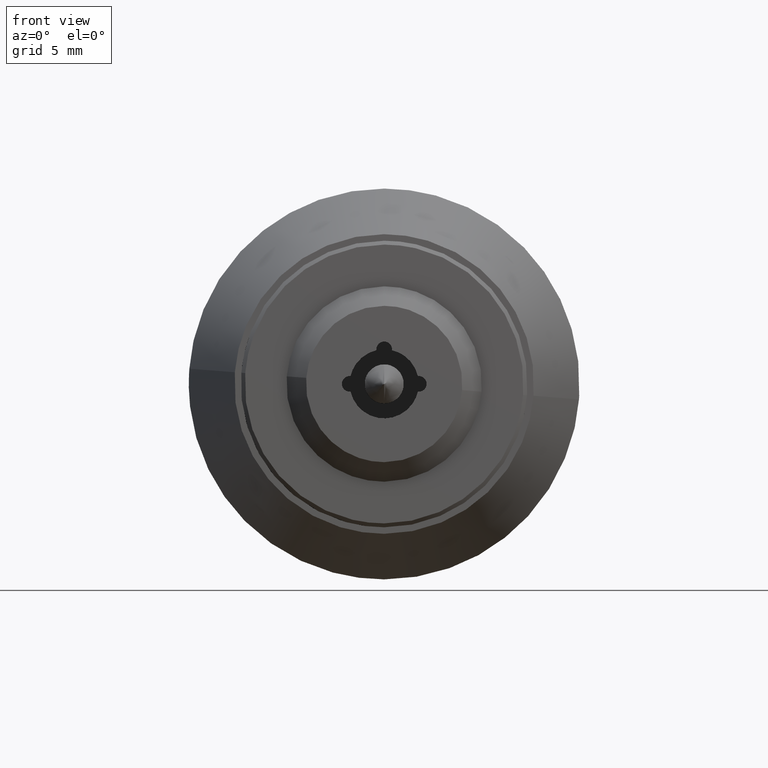
[diagram: clean part render]
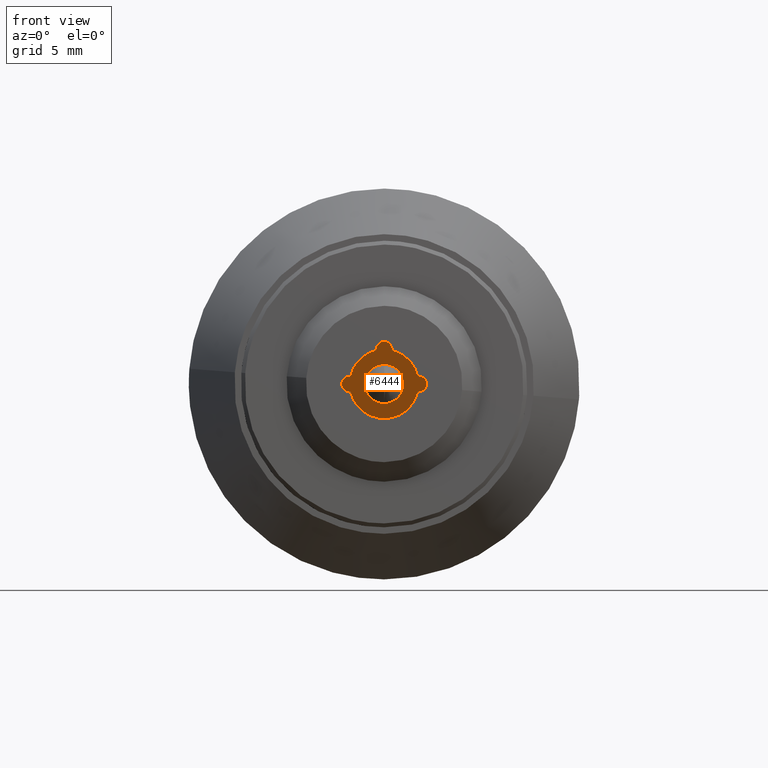
[diagram: same view with one face highlighted and labeled with its STEP entity id]
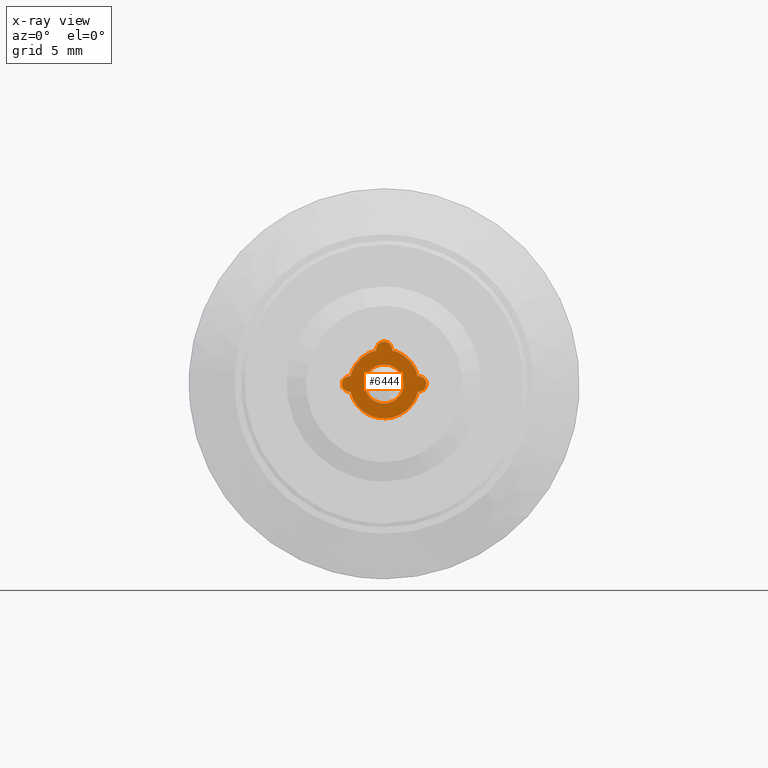
[diagram: x-ray of the same camera — body ghosted, the highlighted face saturated]
A machine part, front view. The second image highlights one B-rep face of the part: STEP entity #6444.
The next image is the same camera in x-ray: the body ghosted, the highlighted face saturated — about 0% of this face is hidden behind the body in this view.
In plain terms, the highlighted face is a freeform B-spline surface patch.
Its self-contained STEP definition (entity closure, byte-faithful):
#3203=CARTESIAN_POINT('',(8.800000000000001,1.489514289536289,0.177051352062623));
#3204=VERTEX_POINT('',#3203);
#3210=CARTESIAN_POINT('',(8.800000000000001,0.0,-1.500000000000000));
#3211=VERTEX_POINT('',#3210);
#3212=CARTESIAN_POINT('',(8.800000000000001,1.489514289536290,0.177051352062623));
#3213=CARTESIAN_POINT('',(8.799999999999999,1.500000000000000,0.088836179556170));
#3214=CARTESIAN_POINT('',(8.800000000000001,1.500000000000000,0.0));
#3215=CARTESIAN_POINT('',(8.800000000000001,1.500000000000000,-1.500000000000000));
#3216=CARTESIAN_POINT('',(8.800000000000001,0.0,-1.500000000000000));
#3224=(BOUNDED_CURVE()B_SPLINE_CURVE(2,(#3212,#3213,#3214,#3215,#3216),.UNSPECIFIED.,.F.,.U.)B_SPLINE_CURVE_WITH_KNOTS((3,2,3),(0.229562473498061,0.250000000000000,0.500000000000000),.UNSPECIFIED.)CURVE()GEOMETRIC_REPRESENTATION_ITEM()RATIONAL_B_SPLINE_CURVE((0.956026754153422,0.976055948313047,1.0,0.707106781186548,1.0))REPRESENTATION_ITEM(''));
#3225=EDGE_CURVE('',#3204,#3211,#3224,.T.);
#3227=CARTESIAN_POINT('',(8.800000000000001,-1.497202197626885,-0.091572809398997));
#3228=VERTEX_POINT('',#3227);
#3229=CARTESIAN_POINT('',(8.800000000000001,0.0,-1.500000000000000));
#3230=CARTESIAN_POINT('',(8.800000000000003,-1.411059100175899,-1.500000000000000));
#3231=CARTESIAN_POINT('',(8.800000000000001,-1.497202197626885,-0.091572809398997));
#3239=(BOUNDED_CURVE()B_SPLINE_CURVE(2,(#3229,#3230,#3231),.UNSPECIFIED.,.F.,.U.)B_SPLINE_CURVE_WITH_KNOTS((3,3),(0.500000000000000,0.739332962219676),.UNSPECIFIED.)CURVE()GEOMETRIC_REPRESENTATION_ITEM()RATIONAL_B_SPLINE_CURVE((1.0,0.719603993309283,0.976072041625425))REPRESENTATION_ITEM(''));
#3240=EDGE_CURVE('',#3211,#3228,#3239,.T.);
#3314=CARTESIAN_POINT('',(8.800000000000001,0.0,1.500000000000000));
#3315=VERTEX_POINT('',#3314);
#3316=CARTESIAN_POINT('',(8.800000000000001,-1.497202197626885,-0.091572809398997));
#3317=CARTESIAN_POINT('',(8.800000000000001,-1.500000000000000,-0.045829145044867));
#3318=CARTESIAN_POINT('',(8.800000000000001,-1.500000000000000,0.0));
#3319=CARTESIAN_POINT('',(8.800000000000001,-1.500000000000000,1.500000000000000));
#3320=CARTESIAN_POINT('',(8.800000000000001,0.0,1.500000000000000));
#3328=(BOUNDED_CURVE()B_SPLINE_CURVE(2,(#3316,#3317,#3318,#3319,#3320),.UNSPECIFIED.,.F.,.U.)B_SPLINE_CURVE_WITH_KNOTS((3,2,3),(0.739332962219677,0.750000000000000,1.0),.UNSPECIFIED.)CURVE()GEOMETRIC_REPRESENTATION_ITEM()RATIONAL_B_SPLINE_CURVE((0.976072041625427,0.987502787877266,1.0,0.707106781186548,1.0))REPRESENTATION_ITEM(''));
#3329=EDGE_CURVE('',#3228,#3315,#3328,.T.);
#3331=CARTESIAN_POINT('',(8.800000000000001,0.0,1.500000000000000));
#3332=CARTESIAN_POINT('',(8.800000000000003,1.332261788787466,1.500000000000000));
#3333=CARTESIAN_POINT('',(8.800000000000001,1.489514289536289,0.177051352062623));
#3341=(BOUNDED_CURVE()B_SPLINE_CURVE(2,(#3331,#3332,#3333),.UNSPECIFIED.,.F.,.U.)B_SPLINE_CURVE_WITH_KNOTS((3,3),(0.0,0.229562473498061),.UNSPECIFIED.)CURVE()GEOMETRIC_REPRESENTATION_ITEM()RATIONAL_B_SPLINE_CURVE((1.0,0.731050832873500,0.956026754153422))REPRESENTATION_ITEM(''));
#3342=EDGE_CURVE('',#3315,#3204,#3341,.T.);
#5693=CARTESIAN_POINT('',(8.800000000000001,-0.599999999999966,2.650000000000000));
#5694=VERTEX_POINT('',#5693);
#5700=CARTESIAN_POINT('',(8.800000000000001,-0.599999977908520,2.581181904963260));
#5701=VERTEX_POINT('',#5700);
#5702=CARTESIAN_POINT('',(8.800000000000001,-0.599999977908520,2.581181904963260));
#5703=CARTESIAN_POINT('',(8.800000000000001,-0.599999999999966,2.650000000000000));
#5704=QUASI_UNIFORM_CURVE('',1,(#5702,#5703),.UNSPECIFIED.,.F.,.U.);
#5705=EDGE_CURVE('',#5701,#5694,#5704,.T.);
#5745=CARTESIAN_POINT('',(8.800000000000001,-2.581181999999955,0.600000000000000));
#5746=VERTEX_POINT('',#5745);
#5747=CARTESIAN_POINT('',(8.800000000000001,-2.581181999999955,0.600000000000000));
#5748=CARTESIAN_POINT('',(8.800000000000001,-2.207512886267419,2.207512886267453));
#5749=CARTESIAN_POINT('',(8.800000000000001,-0.599999977908521,2.581181904963262));
#5757=(BOUNDED_CURVE()B_SPLINE_CURVE(2,(#5747,#5748,#5749),.UNSPECIFIED.,.F.,.U.)CURVE()GEOMETRIC_REPRESENTATION_ITEM()QUASI_UNIFORM_CURVE()RATIONAL_B_SPLINE_CURVE((1.0,0.848843502477901,1.0))REPRESENTATION_ITEM(''));
#5758=EDGE_CURVE('',#5746,#5701,#5757,.T.);
#5781=CARTESIAN_POINT('',(8.800000000000001,-2.649999999999915,0.600000000000000));
#5782=VERTEX_POINT('',#5781);
#5783=CARTESIAN_POINT('',(8.800000000000001,-2.649999999999915,0.600000000000000));
#5784=CARTESIAN_POINT('',(8.800000000000001,-2.581181999999955,0.600000000000000));
#5785=QUASI_UNIFORM_CURVE('',1,(#5783,#5784),.UNSPECIFIED.,.F.,.U.);
#5786=EDGE_CURVE('',#5782,#5746,#5785,.T.);
#5832=CARTESIAN_POINT('',(8.800000000000001,-2.649999999999915,-0.600000000000000));
#5833=VERTEX_POINT('',#5832);
#5834=CARTESIAN_POINT('',(8.800000000000001,-2.649999999999915,-0.600000000000000));
#5835=CARTESIAN_POINT('',(8.800000000000001,-3.249999999999915,-0.600000000000000));
#5836=CARTESIAN_POINT('',(8.800000000000001,-3.249999999999915,0.0));
#5837=CARTESIAN_POINT('',(8.800000000000001,-3.249999999999915,0.600000000000000));
#5838=CARTESIAN_POINT('',(8.800000000000001,-2.649999999999915,0.600000000000000));
#5846=(BOUNDED_CURVE()B_SPLINE_CURVE(2,(#5834,#5835,#5836,#5837,#5838),.UNSPECIFIED.,.F.,.U.)B_SPLINE_CURVE_WITH_KNOTS((3,2,3),(0.0,0.500000000000000,1.0),.UNSPECIFIED.)CURVE()GEOMETRIC_REPRESENTATION_ITEM()RATIONAL_B_SPLINE_CURVE((1.0,0.707106781186547,1.0,0.707106781186547,1.0))REPRESENTATION_ITEM(''));
#5847=EDGE_CURVE('',#5833,#5782,#5846,.T.);
#5870=CARTESIAN_POINT('',(8.800000000000001,-2.581181899828060,-0.600000000000000));
#5871=VERTEX_POINT('',#5870);
#5872=CARTESIAN_POINT('',(8.800000000000001,-2.581181899828060,-0.600000000000000));
#5873=CARTESIAN_POINT('',(8.800000000000001,-2.649999999999915,-0.600000000000000));
#5874=QUASI_UNIFORM_CURVE('',1,(#5872,#5873),.UNSPECIFIED.,.F.,.U.);
#5875=EDGE_CURVE('',#5871,#5833,#5874,.T.);
#5921=CARTESIAN_POINT('',(8.800000000000001,2.581182000000070,-0.600000000000000));
#5922=VERTEX_POINT('',#5921);
#5923=CARTESIAN_POINT('',(8.800000000000001,2.581182000000070,-0.600000000000000));
#5924=CARTESIAN_POINT('',(8.800000000000001,2.104656031215910,-2.649999990993480));
#5925=CARTESIAN_POINT('',(8.800000000000001,0.000000011340227,-2.650000000000000));
#5926=CARTESIAN_POINT('',(8.800000000000001,-2.104656008535454,-2.650000009006519));
#5927=CARTESIAN_POINT('',(8.800000000000001,-2.581181899828061,-0.600000000000001));
#5935=(BOUNDED_CURVE()B_SPLINE_CURVE(2,(#5923,#5924,#5925,#5926,#5927),.UNSPECIFIED.,.F.,.U.)B_SPLINE_CURVE_WITH_KNOTS((3,2,3),(0.0,0.500000000000000,1.0),.UNSPECIFIED.)CURVE()GEOMETRIC_REPRESENTATION_ITEM()RATIONAL_B_SPLINE_CURVE((1.0,0.783075695629555,1.0,0.783075695629555,1.0))REPRESENTATION_ITEM(''));
#5936=EDGE_CURVE('',#5922,#5871,#5935,.T.);
#5959=CARTESIAN_POINT('',(8.800000000000001,2.650000000000035,-0.600000000000000));
#5960=VERTEX_POINT('',#5959);
#5961=CARTESIAN_POINT('',(8.800000000000001,2.650000000000035,-0.600000000000000));
#5962=CARTESIAN_POINT('',(8.800000000000001,2.581182000000070,-0.600000000000000));
#5963=QUASI_UNIFORM_CURVE('',1,(#5961,#5962),.UNSPECIFIED.,.F.,.U.);
#5964=EDGE_CURVE('',#5960,#5922,#5963,.T.);
#6010=CARTESIAN_POINT('',(8.800000000000001,2.650000000000035,0.600000000000000));
#6011=VERTEX_POINT('',#6010);
#6012=CARTESIAN_POINT('',(8.800000000000001,2.650000000000035,0.600000000000000));
#6013=CARTESIAN_POINT('',(8.800000000000001,3.250000000000035,0.600000000000000));
#6014=CARTESIAN_POINT('',(8.800000000000001,3.250000000000035,0.0));
#6015=CARTESIAN_POINT('',(8.800000000000001,3.250000000000035,-0.600000000000000));
#6016=CARTESIAN_POINT('',(8.800000000000001,2.650000000000035,-0.600000000000000));
#6024=(BOUNDED_CURVE()B_SPLINE_CURVE(2,(#6012,#6013,#6014,#6015,#6016),.UNSPECIFIED.,.F.,.U.)B_SPLINE_CURVE_WITH_KNOTS((3,2,3),(0.0,0.500000000000000,1.0),.UNSPECIFIED.)CURVE()GEOMETRIC_REPRESENTATION_ITEM()RATIONAL_B_SPLINE_CURVE((1.0,0.707106781186547,1.0,0.707106781186547,1.0))REPRESENTATION_ITEM(''));
#6025=EDGE_CURVE('',#6011,#5960,#6024,.T.);
#6048=CARTESIAN_POINT('',(8.800000000000001,2.581181904963260,0.599999977908532));
#6049=VERTEX_POINT('',#6048);
#6050=CARTESIAN_POINT('',(8.800000000000001,2.581181904963260,0.599999977908532));
#6051=CARTESIAN_POINT('',(8.800000000000001,2.650000000000035,0.600000000000000));
#6052=QUASI_UNIFORM_CURVE('',1,(#6050,#6051),.UNSPECIFIED.,.F.,.U.);
#6053=EDGE_CURVE('',#6049,#6011,#6052,.T.);
#6093=CARTESIAN_POINT('',(8.800000000000001,0.600000000000080,2.581182000000000));
#6094=VERTEX_POINT('',#6093);
#6095=CARTESIAN_POINT('',(8.800000000000001,0.600000000000080,2.581182000000000));
#6096=CARTESIAN_POINT('',(8.800000000000001,2.207512886267455,2.207512886267374));
#6097=CARTESIAN_POINT('',(8.800000000000001,2.581181904963259,0.599999977908533));
#6105=(BOUNDED_CURVE()B_SPLINE_CURVE(2,(#6095,#6096,#6097),.UNSPECIFIED.,.F.,.U.)CURVE()GEOMETRIC_REPRESENTATION_ITEM()QUASI_UNIFORM_CURVE()RATIONAL_B_SPLINE_CURVE((1.0,0.848843502477909,1.0))REPRESENTATION_ITEM(''));
#6106=EDGE_CURVE('',#6094,#6049,#6105,.T.);
#6129=CARTESIAN_POINT('',(8.800000000000001,0.600000000000080,2.650000000000000));
#6130=VERTEX_POINT('',#6129);
#6131=CARTESIAN_POINT('',(8.800000000000001,0.600000000000080,2.650000000000000));
#6132=CARTESIAN_POINT('',(8.800000000000001,0.600000000000080,2.581182000000000));
#6133=QUASI_UNIFORM_CURVE('',1,(#6131,#6132),.UNSPECIFIED.,.F.,.U.);
#6134=EDGE_CURVE('',#6130,#6094,#6133,.T.);
#6178=CARTESIAN_POINT('',(8.800000000000001,-0.599999999999966,2.650000000000000));
#6179=CARTESIAN_POINT('',(8.800000000000001,-0.600000000000000,3.250000000000000));
#6180=CARTESIAN_POINT('',(8.800000000000001,0.0,3.250000000000000));
#6181=CARTESIAN_POINT('',(8.800000000000001,0.600000000000000,3.250000000000000));
#6182=CARTESIAN_POINT('',(8.800000000000001,0.600000000000080,2.650000000000000));
#6190=(BOUNDED_CURVE()B_SPLINE_CURVE(2,(#6178,#6179,#6180,#6181,#6182),.UNSPECIFIED.,.F.,.U.)B_SPLINE_CURVE_WITH_KNOTS((3,2,3),(0.0,0.500000000000000,1.0),.UNSPECIFIED.)CURVE()GEOMETRIC_REPRESENTATION_ITEM()RATIONAL_B_SPLINE_CURVE((1.0,0.707106781186547,1.0,0.707106781186547,1.0))REPRESENTATION_ITEM(''));
#6191=EDGE_CURVE('',#5694,#6130,#6190,.T.);
#6419=CARTESIAN_POINT('',(8.800000000000001,3.574674987401343,3.544704988564246));
#6420=CARTESIAN_POINT('',(8.800000000000001,-3.574675161744809,3.544704988564246));
#6421=CARTESIAN_POINT('',(8.800000000000001,3.574674987401343,-2.944705146814949));
#6422=CARTESIAN_POINT('',(8.800000000000001,-3.574675161744809,-2.944705146814949));
#6423=B_SPLINE_SURFACE_WITH_KNOTS('',1,1,((#6419,#6421),(#6420,#6422)),.UNSPECIFIED.,.F.,.F.,.U.,(2,2),(2,2),(0.0,7.149350149146152),(0.0,6.489410135379194),.UNSPECIFIED.);
#6424=ORIENTED_EDGE('',*,*,#6191,.T.);
#6425=ORIENTED_EDGE('',*,*,#6134,.T.);
#6426=ORIENTED_EDGE('',*,*,#6106,.T.);
#6427=ORIENTED_EDGE('',*,*,#6053,.T.);
#6428=ORIENTED_EDGE('',*,*,#6025,.T.);
#6429=ORIENTED_EDGE('',*,*,#5964,.T.);
#6430=ORIENTED_EDGE('',*,*,#5936,.T.);
#6431=ORIENTED_EDGE('',*,*,#5875,.T.);
#6432=ORIENTED_EDGE('',*,*,#5847,.T.);
#6433=ORIENTED_EDGE('',*,*,#5786,.T.);
#6434=ORIENTED_EDGE('',*,*,#5758,.T.);
#6435=ORIENTED_EDGE('',*,*,#5705,.T.);
#6436=EDGE_LOOP('',(#6424,#6425,#6426,#6427,#6428,#6429,#6430,#6431,#6432,#6433,#6434,#6435));
#6437=FACE_OUTER_BOUND('',#6436,.T.);
#6438=ORIENTED_EDGE('',*,*,#3240,.F.);
#6439=ORIENTED_EDGE('',*,*,#3225,.F.);
#6440=ORIENTED_EDGE('',*,*,#3342,.F.);
#6441=ORIENTED_EDGE('',*,*,#3329,.F.);
#6442=EDGE_LOOP('',(#6438,#6439,#6440,#6441));
#6443=FACE_BOUND('',#6442,.T.);
#6444=ADVANCED_FACE('',(#6437,#6443),#6423,.F.);